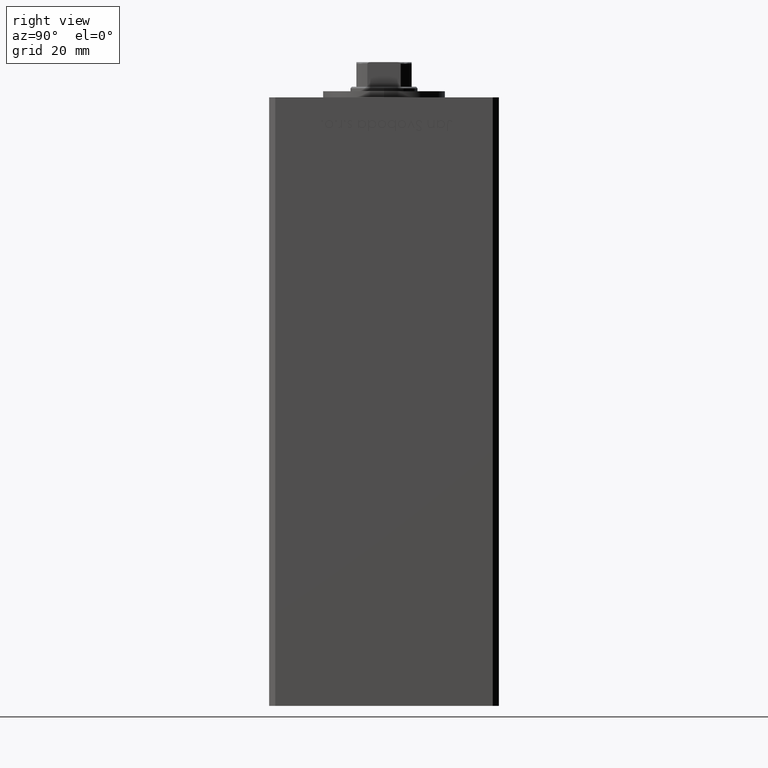
[diagram: clean part render]
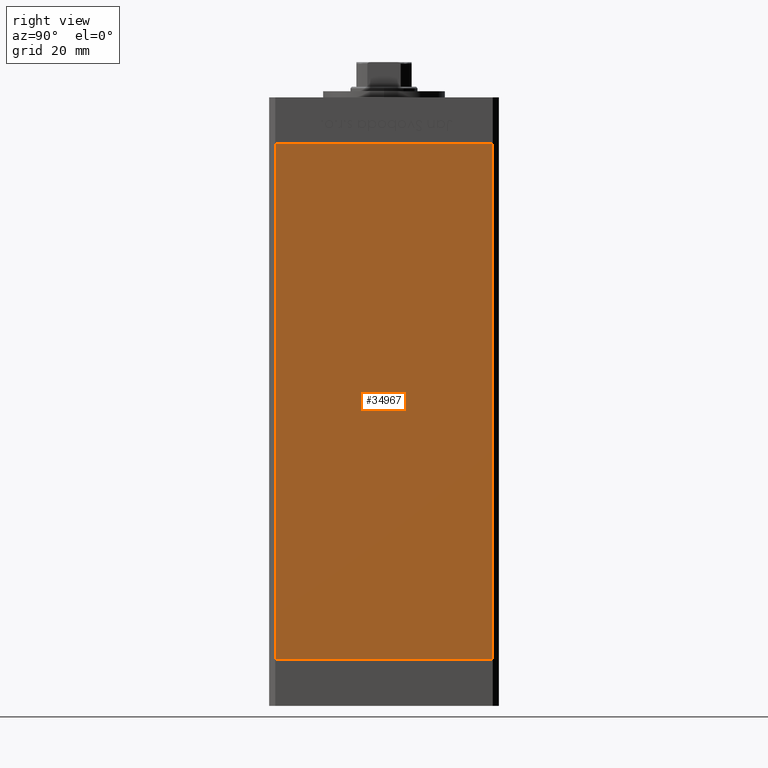
[diagram: same view with one face highlighted and labeled with its STEP entity id]
A machine part, right view. The second image highlights one B-rep face of the part: STEP entity #34967.
In plain terms, the highlighted planar face has unit normal (1, -0, 0).
Its self-contained STEP definition (entity closure, byte-faithful):
#1608 = DIRECTION ( 'NONE',  ( -0.000000000000000000, -0.000000000000000000, -1.000000000000000000 ) ) ;
#3002 = CARTESIAN_POINT ( 'NONE',  ( 42.50000000000000711, 35.50000000000001421, 0.000000000000000000 ) ) ;
#3042 = DIRECTION ( 'NONE',  ( 1.000000000000000000, -2.931927001650941360E-16, 0.000000000000000000 ) ) ;
#6871 = VERTEX_POINT ( 'NONE', #3002 ) ;
#9006 = EDGE_CURVE ( 'NONE', #28958, #21068, #41737, .T. ) ;
#10770 = EDGE_CURVE ( 'NONE', #20271, #6871, #21681, .T. ) ;
#11129 = EDGE_CURVE ( 'NONE', #20271, #28958, #29802, .T. ) ;
#12287 = ORIENTED_EDGE ( 'NONE', *, *, #10770, .F. ) ;
#17522 = CARTESIAN_POINT ( 'NONE',  ( 42.50000000000000711, 35.50000000000001421, 0.000000000000000000 ) ) ;
#18470 = VECTOR ( 'NONE', #21874, 1000.000000000000000 ) ;
#19140 = ORIENTED_EDGE ( 'NONE', *, *, #11129, .T. ) ;
#19173 = FACE_OUTER_BOUND ( 'NONE', #40806, .T. ) ;
#20271 = VERTEX_POINT ( 'NONE', #24451 ) ;
#20374 = VECTOR ( 'NONE', #45244, 1000.000000000000000 ) ;
#21068 = VERTEX_POINT ( 'NONE', #36598 ) ;
#21185 = CARTESIAN_POINT ( 'NONE',  ( 42.49999999999998579, -35.50000000000000711, 168.5000000000000000 ) ) ;
#21681 = LINE ( 'NONE', #37787, #50426 ) ;
#21874 = DIRECTION ( 'NONE',  ( -2.931927001650941360E-16, -1.000000000000000000, 0.000000000000000000 ) ) ;
#23119 = PLANE ( 'NONE',  #47803 ) ;
#24451 = CARTESIAN_POINT ( 'NONE',  ( 42.50000000000000711, 35.50000000000001421, 168.5000000000000000 ) ) ;
#28958 = VERTEX_POINT ( 'NONE', #35297 ) ;
#29166 = LINE ( 'NONE', #17522, #20374 ) ;
#29802 = LINE ( 'NONE', #41927, #18470 ) ;
#33424 = ORIENTED_EDGE ( 'NONE', *, *, #51234, .F. ) ;
#34967 = ADVANCED_FACE ( 'NONE', ( #19173 ), #23119, .T. ) ;
#35278 = DIRECTION ( 'NONE',  ( 2.931927001650941360E-16, 1.000000000000000000, 0.000000000000000000 ) ) ;
#35297 = CARTESIAN_POINT ( 'NONE',  ( 42.49999999999998579, -35.50000000000000711, 168.5000000000000000 ) ) ;
#36598 = CARTESIAN_POINT ( 'NONE',  ( 42.49999999999998579, -35.50000000000000711, 0.000000000000000000 ) ) ;
#37787 = CARTESIAN_POINT ( 'NONE',  ( 42.50000000000000711, 35.50000000000001421, 168.5000000000000000 ) ) ;
#39223 = CARTESIAN_POINT ( 'NONE',  ( 42.50000000000000711, 35.50000000000001421, 168.5000000000000000 ) ) ;
#40806 = EDGE_LOOP ( 'NONE', ( #33424, #12287, #19140, #49469 ) ) ;
#41737 = LINE ( 'NONE', #21185, #48707 ) ;
#41927 = CARTESIAN_POINT ( 'NONE',  ( 42.50000000000000711, 35.50000000000001421, 168.5000000000000000 ) ) ;
#45244 = DIRECTION ( 'NONE',  ( -2.931927001650941360E-16, -1.000000000000000000, 0.000000000000000000 ) ) ;
#45949 = DIRECTION ( 'NONE',  ( -0.000000000000000000, -0.000000000000000000, -1.000000000000000000 ) ) ;
#47803 = AXIS2_PLACEMENT_3D ( 'NONE', #39223, #3042, #35278 ) ;
#48707 = VECTOR ( 'NONE', #45949, 1000.000000000000000 ) ;
#49469 = ORIENTED_EDGE ( 'NONE', *, *, #9006, .T. ) ;
#50426 = VECTOR ( 'NONE', #1608, 1000.000000000000000 ) ;
#51234 = EDGE_CURVE ( 'NONE', #6871, #21068, #29166, .T. ) ;